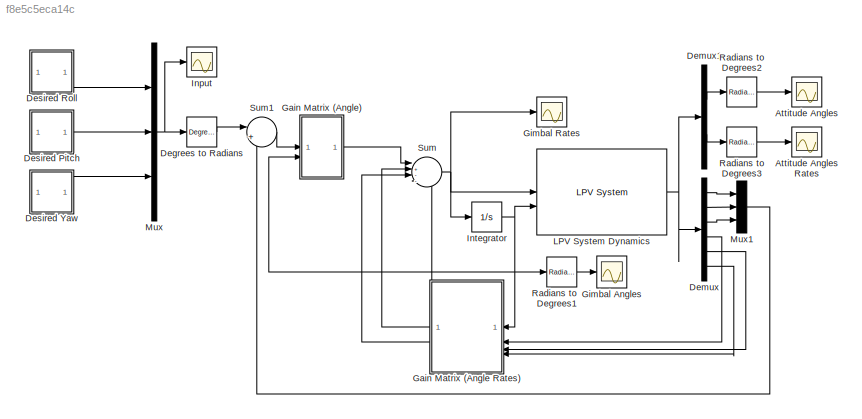
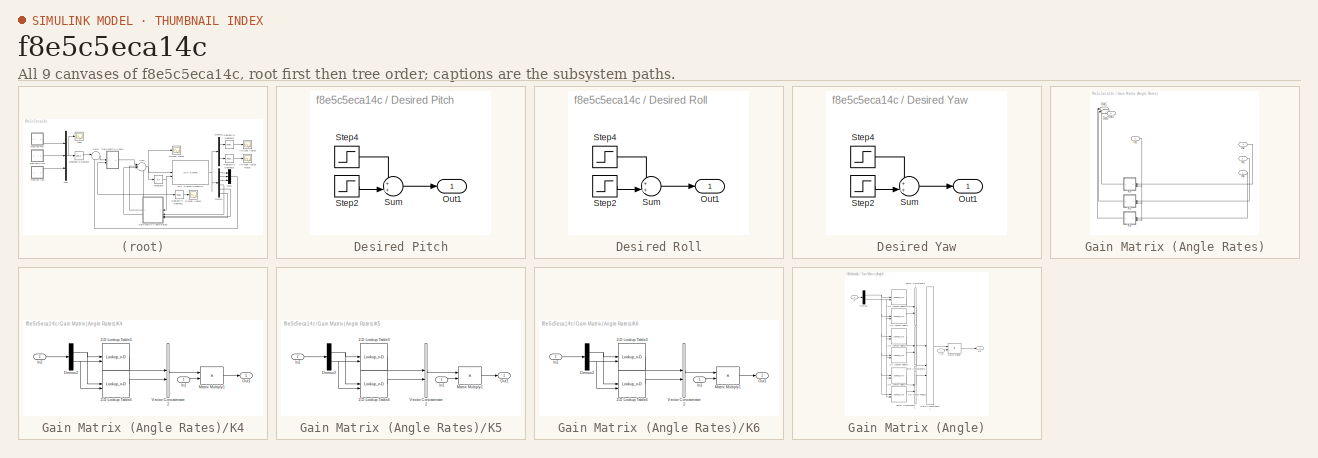
[diagram: thumbnail index - all 9 canvases of the model, root first then tree order]
MODEL slx_f8e5c5eca14c
KIND model
CONFIG AbsTol = auto
CONFIG EnableMultiTasking = off
CONFIG FixedStep = auto
CONFIG MaxStep = auto
CONFIG MinStep = auto
CONFIG RelTol = 1e-3
CONFIG SampleTimeConstraint = Unconstrained
CONFIG SolverName = ode45
CONFIG StartTime = 0.0
CONFIG StopTime = tf
BLOCK [Scope] Attitude Angles
  Floating = off
  NumInputPorts = 1
  ScopeSpecificationString = Simulink.scopes.TimeScopeBlockCfg('CurrentConfiguration', extmgr.ConfigurationSet(extmgr.Configuration('Core','General UI',true),extmgr.Configuration('Core','Source UI',true),extmgr.Configuration('Sources','WiredSimulink',true,'DataLoggingVariableName','Attitude_Angles','DataLogging',true,'DataLoggingSaveFormat','StructureWithTime'),extmgr.Configuration('Visuals','Time Domain',true,'SerializedDisp...<+1654ch>
BLOCK [Scope] Attitude Angles Rates
  Floating = off
  NumInputPorts = 1
  ScopeSpecificationString = Simulink.scopes.TimeScopeBlockCfg('CurrentConfiguration', extmgr.ConfigurationSet(extmgr.Configuration('Core','General UI',true),extmgr.Configuration('Core','Source UI',true),extmgr.Configuration('Sources','WiredSimulink',true,'DataLoggingVariableName','Attitude_Angles_Rates','DataLogging',true,'DataLoggingSaveFormat','StructureWithTime'),extmgr.Configuration('Visuals','Time Domain',true,'Serializ...<+1703ch>
BLOCK [Reference] Degrees to Radians  REF=simulink_extras/Transformations/Degrees to
Radians
  SourceBlock = simulink_extras/Transformations/Degrees to\nRadians
  SourceType = DegreesToRadians
BLOCK [Demux] Demux
  Outputs = 6
BLOCK [Demux] Demux1
  Outputs = 2
BLOCK [SubSystem] Desired Pitch
BLOCK [Outport] Desired Pitch/Out1
BLOCK [Step] Desired Pitch/Step2
  After = 0
  SampleTime = 0
  Time = 5
BLOCK [Step] Desired Pitch/Step4
  After = 0
  SampleTime = 0
BLOCK [Sum] Desired Pitch/Sum
  Inputs = ++|
BLOCK [SubSystem] Desired Roll
BLOCK [Outport] Desired Roll/Out1
BLOCK [Step] Desired Roll/Step2
  After = -15
  SampleTime = 0
  Time = 5000
BLOCK [Step] Desired Roll/Step4
  After = 15
  SampleTime = 0
  Time = 1000
BLOCK [Sum] Desired Roll/Sum
  Inputs = ++|
BLOCK [SubSystem] Desired Yaw
BLOCK [Outport] Desired Yaw/Out1
BLOCK [Step] Desired Yaw/Step2
  After = 0
  SampleTime = 0
  Time = 5
BLOCK [Step] Desired Yaw/Step4
  After = 0
  SampleTime = 0
BLOCK [Sum] Desired Yaw/Sum
  Inputs = ++|
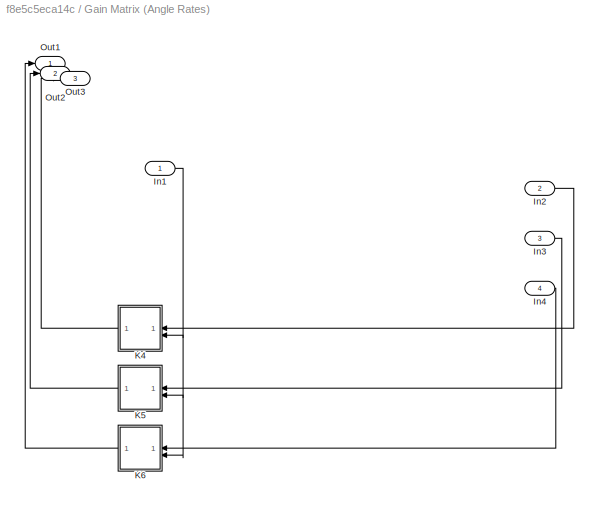
BLOCK [SubSystem] Gain Matrix (Angle Rates)
BLOCK [Inport] Gain Matrix (Angle Rates)/In1
BLOCK [Inport] Gain Matrix (Angle Rates)/In2
  Port = 2
BLOCK [Inport] Gain Matrix (Angle Rates)/In3
  Port = 3
BLOCK [Inport] Gain Matrix (Angle Rates)/In4
  Port = 4
BLOCK [SubSystem] Gain Matrix (Angle Rates)/K4
BLOCK [Lookup_n-D] Gain Matrix (Angle Rates)/K4/2-D Lookup Table3
  BreakpointsForDimension1 = p1
  BreakpointsForDimension2 = p2
  InputPortMap = u0,u1
  InternalRulePriority = Speed
  RndMeth = Simplest
  Table = K14
BLOCK [Lookup_n-D] Gain Matrix (Angle Rates)/K4/2-D Lookup Table4
  BreakpointsForDimension1 = p1
  BreakpointsForDimension2 = p2
  InputPortMap = u0,u1
  InternalRulePriority = Speed
  RndMeth = Simplest
  Table = K24
BLOCK [Demux] Gain Matrix (Angle Rates)/K4/Demux2
  Outputs = 2
BLOCK [Inport] Gain Matrix (Angle Rates)/K4/In1
BLOCK [Inport] Gain Matrix (Angle Rates)/K4/In2
  NameLocation = top
  Port = 2
BLOCK [Product] Gain Matrix (Angle Rates)/K4/Matrix Multiply1
  Multiplication = Matrix(*)
BLOCK [Outport] Gain Matrix (Angle Rates)/K4/Out1
BLOCK [Concatenate] Gain Matrix (Angle Rates)/K4/Vector Concatenate2
BLOCK [SubSystem] Gain Matrix (Angle Rates)/K5
BLOCK [Lookup_n-D] Gain Matrix (Angle Rates)/K5/2-D Lookup Table3
  BreakpointsForDimension1 = p1
  BreakpointsForDimension2 = p2
  InputPortMap = u0,u1
  InternalRulePriority = Speed
  RndMeth = Simplest
  Table = K15
BLOCK [Lookup_n-D] Gain Matrix (Angle Rates)/K5/2-D Lookup Table4
  BreakpointsForDimension1 = p1
  BreakpointsForDimension2 = p2
  InputPortMap = u0,u1
  InternalRulePriority = Speed
  RndMeth = Simplest
  Table = K25
BLOCK [Demux] Gain Matrix (Angle Rates)/K5/Demux2
  Outputs = 2
BLOCK [Inport] Gain Matrix (Angle Rates)/K5/In1
BLOCK [Inport] Gain Matrix (Angle Rates)/K5/In2
  NameLocation = top
  Port = 2
BLOCK [Product] Gain Matrix (Angle Rates)/K5/Matrix Multiply1
  Multiplication = Matrix(*)
BLOCK [Outport] Gain Matrix (Angle Rates)/K5/Out1
BLOCK [Concatenate] Gain Matrix (Angle Rates)/K5/Vector Concatenate2
BLOCK [SubSystem] Gain Matrix (Angle Rates)/K6
BLOCK [Lookup_n-D] Gain Matrix (Angle Rates)/K6/2-D Lookup Table3
  BreakpointsForDimension1 = p1
  BreakpointsForDimension2 = p2
  InputPortMap = u0,u1
  InternalRulePriority = Speed
  RndMeth = Simplest
  Table = K16
BLOCK [Lookup_n-D] Gain Matrix (Angle Rates)/K6/2-D Lookup Table4
  BreakpointsForDimension1 = p1
  BreakpointsForDimension2 = p2
  InputPortMap = u0,u1
  InternalRulePriority = Speed
  RndMeth = Simplest
  Table = K26
BLOCK [Demux] Gain Matrix (Angle Rates)/K6/Demux2
  Outputs = 2
BLOCK [Inport] Gain Matrix (Angle Rates)/K6/In1
BLOCK [Inport] Gain Matrix (Angle Rates)/K6/In2
  NameLocation = top
  Port = 2
BLOCK [Product] Gain Matrix (Angle Rates)/K6/Matrix Multiply1
  Multiplication = Matrix(*)
BLOCK [Outport] Gain Matrix (Angle Rates)/K6/Out1
BLOCK [Concatenate] Gain Matrix (Angle Rates)/K6/Vector Concatenate2
BLOCK [Outport] Gain Matrix (Angle Rates)/Out1
BLOCK [Outport] Gain Matrix (Angle Rates)/Out2
  Port = 2
BLOCK [Outport] Gain Matrix (Angle Rates)/Out3
  Port = 3
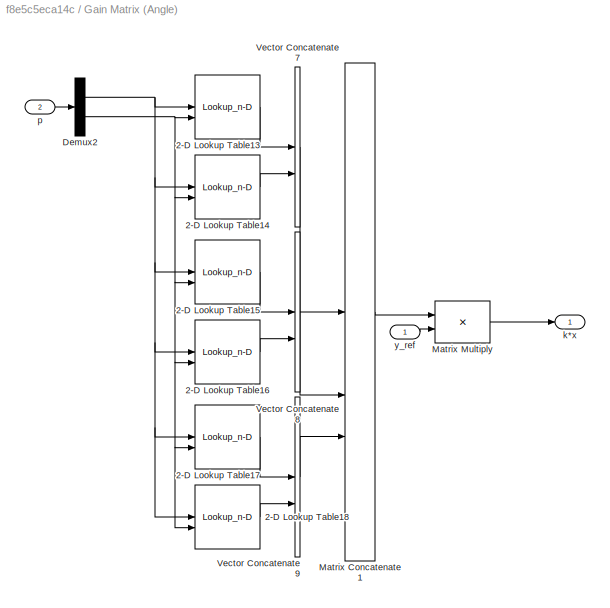
BLOCK [SubSystem] Gain Matrix (Angle)
BLOCK [Lookup_n-D] Gain Matrix (Angle)/2-D Lookup Table13
  BreakpointsForDimension1 = p1
  BreakpointsForDimension2 = p2
  InputPortMap = u0,u1
  InternalRulePriority = Speed
  RndMeth = Simplest
  Table = K11
BLOCK [Lookup_n-D] Gain Matrix (Angle)/2-D Lookup Table14
  BreakpointsForDimension1 = p1
  BreakpointsForDimension2 = p2
  InputPortMap = u0,u1
  InternalRulePriority = Speed
  RndMeth = Simplest
  Table = K21
BLOCK [Lookup_n-D] Gain Matrix (Angle)/2-D Lookup Table15
  BreakpointsForDimension1 = p1
  BreakpointsForDimension2 = p2
  InputPortMap = u0,u1
  InternalRulePriority = Speed
  RndMeth = Simplest
  Table = K12
BLOCK [Lookup_n-D] Gain Matrix (Angle)/2-D Lookup Table16
  BreakpointsForDimension1 = p1
  BreakpointsForDimension2 = p2
  InputPortMap = u0,u1
  InternalRulePriority = Speed
  RndMeth = Simplest
  Table = K22
BLOCK [Lookup_n-D] Gain Matrix (Angle)/2-D Lookup Table17
  BreakpointsForDimension1 = p1
  BreakpointsForDimension2 = p2
  InputPortMap = u0,u1
  InternalRulePriority = Speed
  RndMeth = Simplest
  Table = K13
BLOCK [Lookup_n-D] Gain Matrix (Angle)/2-D Lookup Table18
  BreakpointsForDimension1 = p1
  BreakpointsForDimension2 = p2
  InputPortMap = u0,u1
  InternalRulePriority = Speed
  RndMeth = Simplest
  Table = K23
BLOCK [Demux] Gain Matrix (Angle)/Demux2
  Outputs = 2
BLOCK [Concatenate] Gain Matrix (Angle)/Matrix Concatenate1
  ConcatenateDimension = 2
  Mode = Multidimensional array
  NumInputs = 3
BLOCK [Product] Gain Matrix (Angle)/Matrix Multiply
  Multiplication = Matrix(*)
BLOCK [Concatenate] Gain Matrix (Angle)/Vector Concatenate7
BLOCK [Concatenate] Gain Matrix (Angle)/Vector Concatenate8
BLOCK [Concatenate] Gain Matrix (Angle)/Vector Concatenate9
BLOCK [Outport] Gain Matrix (Angle)/k*x
BLOCK [Inport] Gain Matrix (Angle)/p
  Port = 2
BLOCK [Inport] Gain Matrix (Angle)/y_ref
BLOCK [Scope] Gimbal Angles
  Floating = off
  NumInputPorts = 1
  ScopeSpecificationString = Simulink.scopes.TimeScopeBlockCfg('CurrentConfiguration', extmgr.ConfigurationSet(extmgr.Configuration('Core','General UI',true),extmgr.Configuration('Core','Source UI',true),extmgr.Configuration('Sources','WiredSimulink',true,'DataLogging',true,'DataLoggingVariableName','gamma_output','DataLoggingSaveFormat','StructureWithTime'),extmgr.Configuration('Visuals','Time Domain',true,'SerializedDisplay...<+2008ch>
BLOCK [Scope] Gimbal Rates
  Floating = off
  NumInputPorts = 1
  ScopeSpecificationString = Simulink.scopes.TimeScopeBlockCfg('CurrentConfiguration', extmgr.ConfigurationSet(extmgr.Configuration('Core','General UI',true),extmgr.Configuration('Core','Source UI',true),extmgr.Configuration('Sources','WiredSimulink',true,'DataLoggingVariableName','gamma_output_rates','DataLogging',true,'DataLoggingSaveFormat','StructureWithTime'),extmgr.Configuration('Visuals','Time Domain',true,'SerializedD...<+1635ch>
BLOCK [Scope] Input
  Floating = off
  NumInputPorts = 1
  ScopeSpecificationString = Simulink.scopes.TimeScopeBlockCfg('CurrentConfiguration', extmgr.ConfigurationSet(extmgr.Configuration('Core','General UI',true),extmgr.Configuration('Core','Source UI',true),extmgr.Configuration('Sources','WiredSimulink',true,'DataLoggingVariableName','Input','DataLogging',true,'DataLoggingSaveFormat','StructureWithTime'),extmgr.Configuration('Visuals','Time Domain',true,'SerializedDisplays',{str...<+1661ch>
BLOCK [Integrator] Integrator
  InitialCondition = [gamma1_initial,gamma2_initial]
BLOCK [Reference] LPV System Dynamics  REF=cstblocks/Linear Parameter Varying/LPV System
  SourceBlock = cstblocks/Linear Parameter Varying/LPV System
  SourceType = LPV Block
BLOCK [Mux] Mux
  DisplayOption = bar
  Inputs = 3
BLOCK [Mux] Mux1
  DisplayOption = bar
  Inputs = 3
BLOCK [Reference] Radians to Degrees1  REF=simulink_extras/Transformations/Radians
to Degrees
  SourceBlock = simulink_extras/Transformations/Radians\nto Degrees
  SourceType = RadiansToDegrees
BLOCK [Reference] Radians to Degrees2  REF=simulink_extras/Transformations/Radians
to Degrees
  SourceBlock = simulink_extras/Transformations/Radians\nto Degrees
  SourceType = RadiansToDegrees
BLOCK [Reference] Radians to Degrees3  REF=simulink_extras/Transformations/Radians
to Degrees
  SourceBlock = simulink_extras/Transformations/Radians\nto Degrees
  SourceType = RadiansToDegrees
BLOCK [Sum] Sum
  Inputs = |+---
BLOCK [Sum] Sum1
  Inputs = |+-
LINE Degrees to Radians:1 -> Sum1:1
LINE Demux1:1 -> Radians to Degrees2:1
LINE Demux1:2 -> Radians to Degrees3:1
LINE Demux:1 -> Mux1:1
LINE Demux:2 -> Mux1:2
LINE Demux:3 -> Mux1:3
LINE Demux:4 -> Gain Matrix (Angle Rates):2
LINE Demux:5 -> Gain Matrix (Angle Rates):3
LINE Demux:6 -> Gain Matrix (Angle Rates):4
LINE Desired Pitch/Step2:1 -> Desired Pitch/Sum:2
LINE Desired Pitch/Step4:1 -> Desired Pitch/Sum:1
LINE Desired Pitch/Sum:1 -> Desired Pitch/Out1:1
LINE Desired Pitch:1 -> Mux:2
LINE Desired Roll/Step2:1 -> Desired Roll/Sum:2
LINE Desired Roll/Step4:1 -> Desired Roll/Sum:1
LINE Desired Roll/Sum:1 -> Desired Roll/Out1:1
LINE Desired Roll:1 -> Mux:1
LINE Desired Yaw/Step2:1 -> Desired Yaw/Sum:2
LINE Desired Yaw/Step4:1 -> Desired Yaw/Sum:1
LINE Desired Yaw/Sum:1 -> Desired Yaw/Out1:1
LINE Desired Yaw:1 -> Mux:3
NET Gain Matrix (Angle Rates)/In1:1 -> Gain Matrix (Angle Rates)/K4:2, Gain Matrix (Angle Rates)/K5:2, Gain Matrix (Angle Rates)/K6:2
LINE Gain Matrix (Angle Rates)/In2:1 -> Gain Matrix (Angle Rates)/K4:1
LINE Gain Matrix (Angle Rates)/In3:1 -> Gain Matrix (Angle Rates)/K5:1
LINE Gain Matrix (Angle Rates)/In4:1 -> Gain Matrix (Angle Rates)/K6:1
LINE Gain Matrix (Angle Rates)/K4/2-D Lookup Table3:1 -> Gain Matrix (Angle Rates)/K4/Vector Concatenate2:1
LINE Gain Matrix (Angle Rates)/K4/2-D Lookup Table4:1 -> Gain Matrix (Angle Rates)/K4/Vector Concatenate2:2
NET Gain Matrix (Angle Rates)/K4/Demux2:1 -> Gain Matrix (Angle Rates)/K4/2-D Lookup Table3:1, Gain Matrix (Angle Rates)/K4/2-D Lookup Table4:1
NET Gain Matrix (Angle Rates)/K4/Demux2:2 -> Gain Matrix (Angle Rates)/K4/2-D Lookup Table3:2, Gain Matrix (Angle Rates)/K4/2-D Lookup Table4:2
LINE Gain Matrix (Angle Rates)/K4/In1:1 -> Gain Matrix (Angle Rates)/K4/Matrix Multiply1:2
LINE Gain Matrix (Angle Rates)/K4/In2:1 -> Gain Matrix (Angle Rates)/K4/Demux2:1
LINE Gain Matrix (Angle Rates)/K4/Matrix Multiply1:1 -> Gain Matrix (Angle Rates)/K4/Out1:1
LINE Gain Matrix (Angle Rates)/K4/Vector Concatenate2:1 -> Gain Matrix (Angle Rates)/K4/Matrix Multiply1:1
LINE Gain Matrix (Angle Rates)/K4:1 -> Gain Matrix (Angle Rates)/Out3:1
LINE Gain Matrix (Angle Rates)/K5/2-D Lookup Table3:1 -> Gain Matrix (Angle Rates)/K5/Vector Concatenate2:1
LINE Gain Matrix (Angle Rates)/K5/2-D Lookup Table4:1 -> Gain Matrix (Angle Rates)/K5/Vector Concatenate2:2
NET Gain Matrix (Angle Rates)/K5/Demux2:1 -> Gain Matrix (Angle Rates)/K5/2-D Lookup Table3:1, Gain Matrix (Angle Rates)/K5/2-D Lookup Table4:1
NET Gain Matrix (Angle Rates)/K5/Demux2:2 -> Gain Matrix (Angle Rates)/K5/2-D Lookup Table3:2, Gain Matrix (Angle Rates)/K5/2-D Lookup Table4:2
LINE Gain Matrix (Angle Rates)/K5/In1:1 -> Gain Matrix (Angle Rates)/K5/Matrix Multiply1:2
LINE Gain Matrix (Angle Rates)/K5/In2:1 -> Gain Matrix (Angle Rates)/K5/Demux2:1
LINE Gain Matrix (Angle Rates)/K5/Matrix Multiply1:1 -> Gain Matrix (Angle Rates)/K5/Out1:1
LINE Gain Matrix (Angle Rates)/K5/Vector Concatenate2:1 -> Gain Matrix (Angle Rates)/K5/Matrix Multiply1:1
LINE Gain Matrix (Angle Rates)/K5:1 -> Gain Matrix (Angle Rates)/Out2:1
LINE Gain Matrix (Angle Rates)/K6/2-D Lookup Table3:1 -> Gain Matrix (Angle Rates)/K6/Vector Concatenate2:1
LINE Gain Matrix (Angle Rates)/K6/2-D Lookup Table4:1 -> Gain Matrix (Angle Rates)/K6/Vector Concatenate2:2
NET Gain Matrix (Angle Rates)/K6/Demux2:1 -> Gain Matrix (Angle Rates)/K6/2-D Lookup Table3:1, Gain Matrix (Angle Rates)/K6/2-D Lookup Table4:1
NET Gain Matrix (Angle Rates)/K6/Demux2:2 -> Gain Matrix (Angle Rates)/K6/2-D Lookup Table3:2, Gain Matrix (Angle Rates)/K6/2-D Lookup Table4:2
LINE Gain Matrix (Angle Rates)/K6/In1:1 -> Gain Matrix (Angle Rates)/K6/Matrix Multiply1:2
LINE Gain Matrix (Angle Rates)/K6/In2:1 -> Gain Matrix (Angle Rates)/K6/Demux2:1
LINE Gain Matrix (Angle Rates)/K6/Matrix Multiply1:1 -> Gain Matrix (Angle Rates)/K6/Out1:1
LINE Gain Matrix (Angle Rates)/K6/Vector Concatenate2:1 -> Gain Matrix (Angle Rates)/K6/Matrix Multiply1:1
LINE Gain Matrix (Angle Rates)/K6:1 -> Gain Matrix (Angle Rates)/Out1:1
LINE Gain Matrix (Angle Rates):1 -> Sum:2
LINE Gain Matrix (Angle Rates):2 -> Sum:3
LINE Gain Matrix (Angle Rates):3 -> Sum:4
LINE Gain Matrix (Angle)/2-D Lookup Table13:1 -> Gain Matrix (Angle)/Vector Concatenate7:1
LINE Gain Matrix (Angle)/2-D Lookup Table14:1 -> Gain Matrix (Angle)/Vector Concatenate7:2
LINE Gain Matrix (Angle)/2-D Lookup Table15:1 -> Gain Matrix (Angle)/Vector Concatenate8:1
LINE Gain Matrix (Angle)/2-D Lookup Table16:1 -> Gain Matrix (Angle)/Vector Concatenate8:2
LINE Gain Matrix (Angle)/2-D Lookup Table17:1 -> Gain Matrix (Angle)/Vector Concatenate9:1
LINE Gain Matrix (Angle)/2-D Lookup Table18:1 -> Gain Matrix (Angle)/Vector Concatenate9:2
NET Gain Matrix (Angle)/Demux2:1 -> Gain Matrix (Angle)/2-D Lookup Table13:1, Gain Matrix (Angle)/2-D Lookup Table14:1, Gain Matrix (Angle)/2-D Lookup Table15:1, Gain Matrix (Angle)/2-D Lookup Table16:1, Gain Matrix (Angle)/2-D Lookup Table17:1, Gain Matrix (Angle)/2-D Lookup Table18:1
NET Gain Matrix (Angle)/Demux2:2 -> Gain Matrix (Angle)/2-D Lookup Table13:2, Gain Matrix (Angle)/2-D Lookup Table14:2, Gain Matrix (Angle)/2-D Lookup Table15:2, Gain Matrix (Angle)/2-D Lookup Table16:2, Gain Matrix (Angle)/2-D Lookup Table17:2, Gain Matrix (Angle)/2-D Lookup Table18:2
LINE Gain Matrix (Angle)/Matrix Concatenate1:1 -> Gain Matrix (Angle)/Matrix Multiply:1
LINE Gain Matrix (Angle)/Matrix Multiply:1 -> Gain Matrix (Angle)/k*x:1
LINE Gain Matrix (Angle)/Vector Concatenate7:1 -> Gain Matrix (Angle)/Matrix Concatenate1:1
LINE Gain Matrix (Angle)/Vector Concatenate8:1 -> Gain Matrix (Angle)/Matrix Concatenate1:2
LINE Gain Matrix (Angle)/Vector Concatenate9:1 -> Gain Matrix (Angle)/Matrix Concatenate1:3
LINE Gain Matrix (Angle)/p:1 -> Gain Matrix (Angle)/Demux2:1
LINE Gain Matrix (Angle)/y_ref:1 -> Gain Matrix (Angle)/Matrix Multiply:2
LINE Gain Matrix (Angle):1 -> Sum:1
NET Integrator:1 -> Gain Matrix (Angle Rates):1, Gain Matrix (Angle):2, LPV System Dynamics:2, Radians to Degrees1:1
NET LPV System Dynamics:1 -> Demux1:1, Demux:1
LINE Mux1:1 -> Sum1:2
NET Mux:1 -> Degrees to Radians:1, Input:1
LINE Radians to Degrees1:1 -> Gimbal Angles:1
LINE Radians to Degrees2:1 -> Attitude Angles:1
LINE Radians to Degrees3:1 -> Attitude Angles Rates:1
LINE Sum1:1 -> Gain Matrix (Angle):1
NET Sum:1 -> Gimbal Rates:1, Integrator:1, LPV System Dynamics:1
note: NET lines group one-source signal fan-out (src -> all destinations, sorted); 1:1 wires keep LINE
